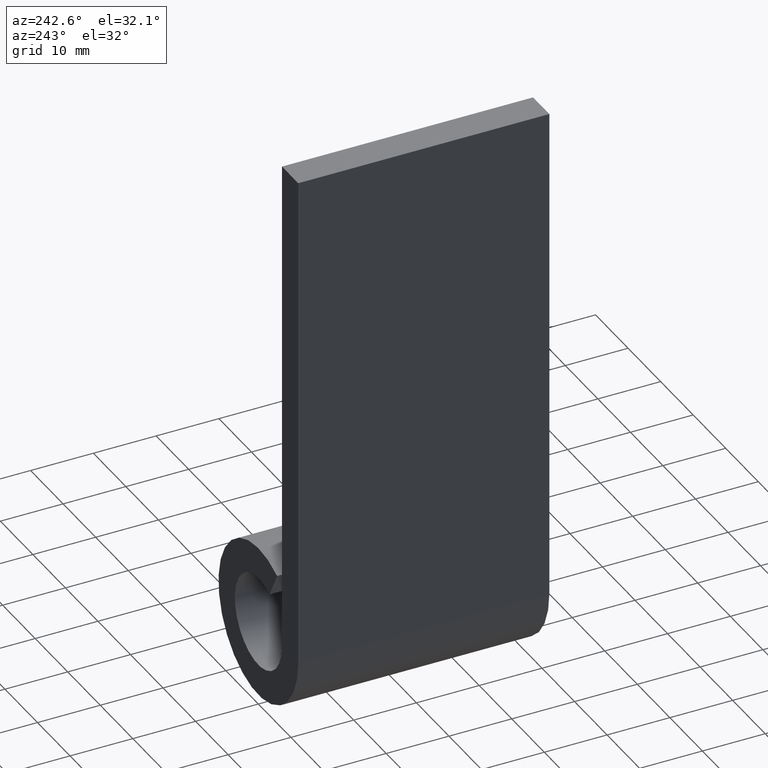
[diagram: clean part render]
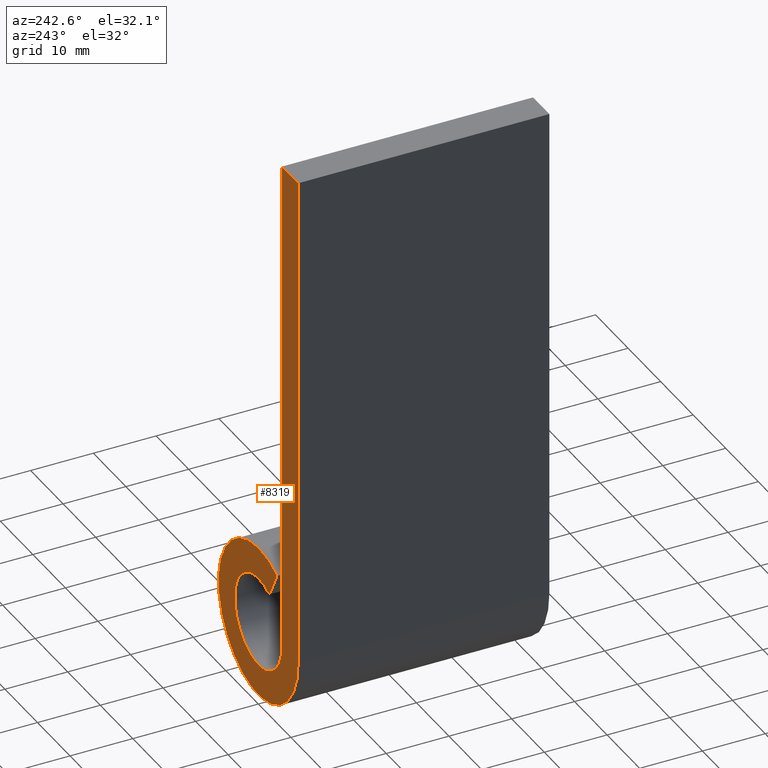
[diagram: same view with one face highlighted and labeled with its STEP entity id]
A machine part, auxiliary view. The second image highlights one B-rep face of the part: STEP entity #8319.
In plain terms, the highlighted planar face has unit normal (0, -1, 0).
Its self-contained STEP definition (entity closure, byte-faithful):
#38 = DIRECTION ( 'NONE',  ( -0.000000000000000000, -1.000000000000000000, 0.000000000000000000 ) ) ;
#465 = ORIENTED_EDGE ( 'NONE', *, *, #11507, .T. ) ;
#1195 = CARTESIAN_POINT ( 'NONE',  ( -7.250000000000000000, 20.00000000000000000, 0.000000000000000000 ) ) ;
#1204 = VECTOR ( 'NONE', #3713, 1000.000000000000000 ) ;
#1736 = VECTOR ( 'NONE', #3807, 1000.000000000000000 ) ;
#2247 = VERTEX_POINT ( 'NONE', #11106 ) ;
#2612 = ORIENTED_EDGE ( 'NONE', *, *, #12796, .T. ) ;
#2814 = CARTESIAN_POINT ( 'NONE',  ( 8.673617379884035472E-15, 20.00000000000000000, 0.000000000000000000 ) ) ;
#3713 = DIRECTION ( 'NONE',  ( 0.000000000000000000, 0.000000000000000000, -1.000000000000000000 ) ) ;
#3742 = VERTEX_POINT ( 'NONE', #5145 ) ;
#3788 = AXIS2_PLACEMENT_3D ( 'NONE', #7275, #38, #11328 ) ;
#3807 = DIRECTION ( 'NONE',  ( -0.000000000000000000, -0.000000000000000000, 1.000000000000000000 ) ) ;
#3841 = DIRECTION ( 'NONE',  ( 0.000000000000000000, 1.000000000000000000, -0.000000000000000000 ) ) ;
#4545 = CIRCLE ( 'NONE', #8771, 12.25000000000000711 ) ;
#5094 = LINE ( 'NONE', #8123, #7007 ) ;
#5145 = CARTESIAN_POINT ( 'NONE',  ( -5.750000000000000888, 20.00000000000000000, 10.81665382639196871 ) ) ;
#5439 = DIRECTION ( 'NONE',  ( 0.000000000000000000, -0.000000000000000000, -1.000000000000000000 ) ) ;
#5578 = CARTESIAN_POINT ( 'NONE',  ( -12.24999999999999822, 20.00000000000000000, 2.250288493433262686E-15 ) ) ;
#5846 = ORIENTED_EDGE ( 'NONE', *, *, #12848, .T. ) ;
#6152 = VERTEX_POINT ( 'NONE', #10425 ) ;
#6330 = EDGE_CURVE ( 'NONE', #10829, #6152, #12596, .T. ) ;
#6384 = EDGE_CURVE ( 'NONE', #6152, #11512, #5094, .T. ) ;
#7007 = VECTOR ( 'NONE', #8230, 1000.000000000000000 ) ;
#7057 = VERTEX_POINT ( 'NONE', #1195 ) ;
#7275 = CARTESIAN_POINT ( 'NONE',  ( 8.673617379884035472E-15, 20.00000000000000000, 0.000000000000000000 ) ) ;
#7377 = DIRECTION ( 'NONE',  ( 0.000000000000000000, -1.000000000000000000, 0.000000000000000000 ) ) ;
#7558 = LINE ( 'NONE', #10745, #1204 ) ;
#7848 = EDGE_LOOP ( 'NONE', ( #11721, #2612, #465, #13015, #5846, #9622 ) ) ;
#8123 = CARTESIAN_POINT ( 'NONE',  ( -12.25000000000000000, 20.00000000000000000, 80.00000000000000000 ) ) ;
#8230 = DIRECTION ( 'NONE',  ( 1.000000000000000000, 0.000000000000000000, 0.000000000000000000 ) ) ;
#8319 = ADVANCED_FACE ( 'NONE', ( #11648 ), #12458, .F. ) ;
#8771 = AXIS2_PLACEMENT_3D ( 'NONE', #2814, #3841, #11012 ) ;
#8862 = LINE ( 'NONE', #10988, #11578 ) ;
#8977 = AXIS2_PLACEMENT_3D ( 'NONE', #10490, #7377, #5439 ) ;
#9622 = ORIENTED_EDGE ( 'NONE', *, *, #6330, .T. ) ;
#10425 = CARTESIAN_POINT ( 'NONE',  ( -12.25000000000000000, 20.00000000000000000, 80.00000000000000000 ) ) ;
#10490 = CARTESIAN_POINT ( 'NONE',  ( 8.673617379884035472E-15, 20.00000000000000000, 0.000000000000000000 ) ) ;
#10745 = CARTESIAN_POINT ( 'NONE',  ( -7.250000000000000000, 20.00000000000000000, 80.00000000000000000 ) ) ;
#10769 = CIRCLE ( 'NONE', #3788, 7.250000000000007105 ) ;
#10829 = VERTEX_POINT ( 'NONE', #5578 ) ;
#10988 = CARTESIAN_POINT ( 'NONE',  ( -5.750000000000000888, 20.00000000000000000, 10.81665382639196871 ) ) ;
#11012 = DIRECTION ( 'NONE',  ( 0.000000000000000000, 0.000000000000000000, -1.000000000000000000 ) ) ;
#11106 = CARTESIAN_POINT ( 'NONE',  ( -3.403061224489794423, 20.00000000000000000, 6.401693080925862311 ) ) ;
#11328 = DIRECTION ( 'NONE',  ( 0.000000000000000000, 0.000000000000000000, -1.000000000000000000 ) ) ;
#11507 = EDGE_CURVE ( 'NONE', #7057, #2247, #10769, .T. ) ;
#11512 = VERTEX_POINT ( 'NONE', #12347 ) ;
#11578 = VECTOR ( 'NONE', #11934, 1000.000000000000114 ) ;
#11648 = FACE_OUTER_BOUND ( 'NONE', #7848, .T. ) ;
#11721 = ORIENTED_EDGE ( 'NONE', *, *, #6384, .T. ) ;
#11767 = EDGE_CURVE ( 'NONE', #2247, #3742, #8862, .T. ) ;
#11934 = DIRECTION ( 'NONE',  ( -0.4693877551020408379, -0.000000000000000000, 0.8829921490932218786 ) ) ;
#12138 = CARTESIAN_POINT ( 'NONE',  ( -12.25000000000000000, 20.00000000000000000, 80.00000000000000000 ) ) ;
#12347 = CARTESIAN_POINT ( 'NONE',  ( -7.250000000000000000, 20.00000000000000000, 80.00000000000000000 ) ) ;
#12458 = PLANE ( 'NONE',  #8977 ) ;
#12596 = LINE ( 'NONE', #12138, #1736 ) ;
#12796 = EDGE_CURVE ( 'NONE', #11512, #7057, #7558, .T. ) ;
#12848 = EDGE_CURVE ( 'NONE', #3742, #10829, #4545, .T. ) ;
#13015 = ORIENTED_EDGE ( 'NONE', *, *, #11767, .T. ) ;